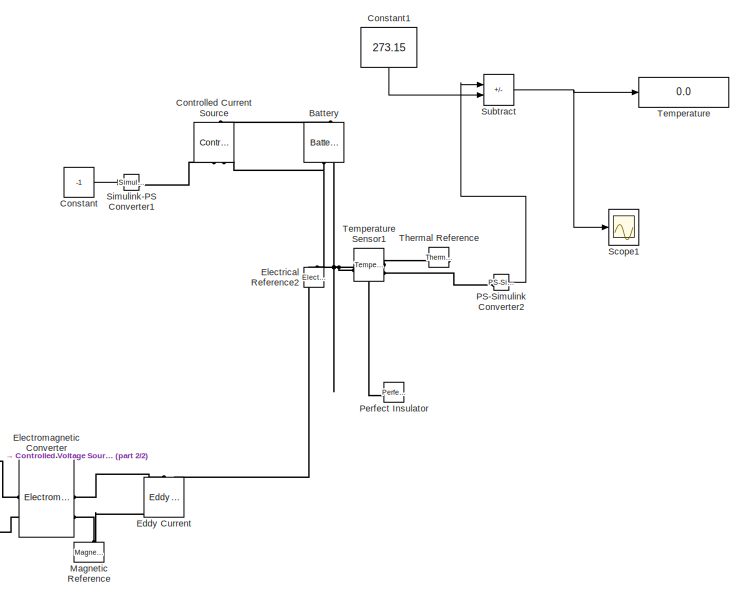
[diagram: root canvas - part 1/2, right side, full height]
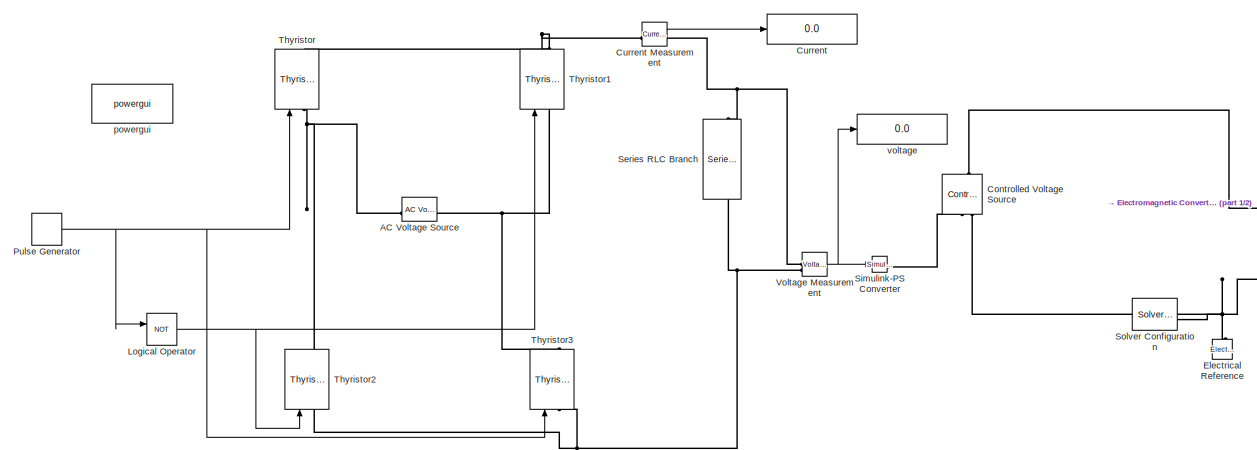
[diagram: root canvas - part 2/2, bottom left region]
MODEL slx_2c9a01e80426
KIND model
CONFIG AbsTol = auto
CONFIG EnableMultiTasking = off
CONFIG FixedStep = auto
CONFIG MaxStep = auto
CONFIG MinStep = auto
CONFIG RelTol = 1e-3
CONFIG SampleTimeConstraint = Unconstrained
CONFIG SolverName = VariableStepAuto
CONFIG StartTime = 0.0
CONFIG StopTime = 10
BLOCK [Reference] AC Voltage Source  REF=spsACVoltageSourceLib/AC Voltage Source
  LibrarySourceBlock = sps_lib/Sources/AC Voltage Source
  NameLocation = right
  SourceBlock = spsACVoltageSourceLib/AC Voltage Source
  SourceType = AC Voltage Source
BLOCK [Reference] Battery  REF=batteryecm_lib/Battery
  NameLocation = right
  SourceBlock = batteryecm_lib/Battery
  SourceType = Battery
BLOCK [Constant] Constant
  Value = -1
BLOCK [Constant] Constant1
  NameLocation = left
  Value = 273.15
BLOCK [Reference] Controlled Current Source  REF=fl_lib/Electrical/Electrical Sources/Controlled Current
Source
  NameLocation = left
  SourceBlock = fl_lib/Electrical/Electrical Sources/Controlled Current\nSource
  SourceType = Controlled Current\nSource
BLOCK [Reference] Controlled Voltage Source  REF=fl_lib/Electrical/Electrical Sources/Controlled Voltage
Source
  NameLocation = right
  SourceBlock = fl_lib/Electrical/Electrical Sources/Controlled Voltage\nSource
  SourceType = Controlled Voltage\nSource
BLOCK [Display] Current
  Decimation = 1
BLOCK [Reference] Current Measurement  REF=spsCurrentMeasurementLib/Current Measurement
  LibrarySourceBlock = sps_lib/Sensors and Measurements/Current Measurement
  SourceBlock = spsCurrentMeasurementLib/Current Measurement
  SourceType = Current Measurement
  UserDataPersistent = on
BLOCK [Reference] Eddy Current  REF=ee_lib/Passive/Eddy Current
  NameLocation = left
  SourceBlock = ee_lib/Passive/Eddy Current
  SourceType = Eddy Current
BLOCK [Reference] Electrical Reference  REF=fl_lib/Electrical/Electrical Elements/Electrical Reference
  LibrarySourceBlock = ee_lib/Connectors &\nReferences/Electrical Reference
  NameLocation = right
  SourceBlock = fl_lib/Electrical/Electrical Elements/Electrical Reference
  SourceType = Electrical Reference
BLOCK [Reference] Electrical Reference2  REF=fl_lib/Electrical/Electrical Elements/Electrical Reference
  NameLocation = right
  SourceBlock = fl_lib/Electrical/Electrical Elements/Electrical Reference
  SourceType = Electrical Reference
BLOCK [Reference] Electromagnetic Converter  REF=fl_lib/Magnetic/Magnetic Elements/Electromagnetic
Converter
  SourceBlock = fl_lib/Magnetic/Magnetic Elements/Electromagnetic\nConverter
  SourceType = Electromagnetic\nConverter
BLOCK [Logic] Logical Operator
  AllPortsSameDT = off
  Operator = NOT
  OutDataTypeStr = boolean
BLOCK [Reference] Magnetic Reference  REF=fl_lib/Magnetic/Magnetic Elements/Magnetic Reference
  NameLocation = right
  SourceBlock = fl_lib/Magnetic/Magnetic Elements/Magnetic Reference
  SourceType = Magnetic Reference
BLOCK [Reference] PS-Simulink Converter2  REF=nesl_utility/PS-Simulink
Converter
  SourceBlock = nesl_utility/PS-Simulink\nConverter
  SourceType = PS-Simulink\nConverter
BLOCK [Reference] Perfect Insulator  REF=fl_lib/Thermal/Thermal Elements/Perfect Insulator
  NameLocation = top
  SourceBlock = fl_lib/Thermal/Thermal Elements/Perfect Insulator
  SourceType = Perfect Insulator
BLOCK [DiscretePulseGenerator] Pulse Generator
  Period = 0.00002
  PulseType = Time based
  PulseWidth = 50
BLOCK [Scope] Scope1
  Floating = off
  NumInputPorts = 1
  ScopeSpecificationString = Simulink.scopes.TimeScopeBlockCfg('CurrentConfiguration', extmgr.ConfigurationSet(extmgr.Configuration('Core','General UI',true),extmgr.Configuration('Core','Source UI',true),extmgr.Configuration('Sources','WiredSimulink',true,'DataLoggingVariableName','ScopeData1'),extmgr.Configuration('Visuals','Time Domain',true,'SerializedDisplays',{struct('MinYLimReal','-695.87867','MaxYLimReal','883.17938','...<+1482ch>
BLOCK [Reference] Series RLC Branch  REF=spsSeriesRLCBranchLib/Series RLC Branch
  LibrarySourceBlock = sps_lib/Passives/Series RLC Branch
  NameLocation = left
  SourceBlock = spsSeriesRLCBranchLib/Series RLC Branch
  SourceType = Series RLC Branch
BLOCK [Reference] Simulink-PS Converter  REF=nesl_utility/Simulink-PS
Converter
  SourceBlock = nesl_utility/Simulink-PS\nConverter
  SourceType = Simulink-PS\nConverter
BLOCK [Reference] Simulink-PS Converter1  REF=nesl_utility/Simulink-PS
Converter
  SourceBlock = nesl_utility/Simulink-PS\nConverter
  SourceType = Simulink-PS\nConverter
BLOCK [Reference] Solver Configuration  REF=nesl_utility/Solver
Configuration
  NameLocation = top
  SourceBlock = nesl_utility/Solver\nConfiguration
  SourceType = Solver\nConfiguration
BLOCK [Sum] Subtract
  IconShape = rectangular
  Inputs = +-
BLOCK [Display] Temperature
  Decimation = 1
BLOCK [Reference] Temperature Sensor1  REF=fl_lib/Thermal/Thermal Sensors/Temperature Sensor
  SourceBlock = fl_lib/Thermal/Thermal Sensors/Temperature Sensor
  SourceType = Temperature Sensor
BLOCK [Reference] Thermal Reference  REF=fl_lib/Thermal/Thermal Elements/Thermal Reference
  NameLocation = top
  SourceBlock = fl_lib/Thermal/Thermal Elements/Thermal Reference
  SourceType = Thermal Reference
BLOCK [Reference] Thyristor  REF=spsThyristorLib/Thyristor
  LibrarySourceBlock = sps_lib/Power Electronics/Thyristor
  NameLocation = right
  SourceBlock = spsThyristorLib/Thyristor
  SourceType = Thyristor
BLOCK [Reference] Thyristor1  REF=spsThyristorLib/Thyristor
  LibrarySourceBlock = sps_lib/Power Electronics/Thyristor
  NameLocation = right
  SourceBlock = spsThyristorLib/Thyristor
  SourceType = Thyristor
BLOCK [Reference] Thyristor2  REF=spsThyristorLib/Thyristor
  LibrarySourceBlock = sps_lib/Power Electronics/Thyristor
  NameLocation = right
  SourceBlock = spsThyristorLib/Thyristor
  SourceType = Thyristor
BLOCK [Reference] Thyristor3  REF=spsThyristorLib/Thyristor
  LibrarySourceBlock = sps_lib/Power Electronics/Thyristor
  NameLocation = right
  SourceBlock = spsThyristorLib/Thyristor
  SourceType = Thyristor
BLOCK [Reference] Voltage Measurement  REF=spsVoltageMeasurementLib/Voltage Measurement
  LibrarySourceBlock = sps_lib/Sensors and Measurements/Voltage Measurement
  SourceBlock = spsVoltageMeasurementLib/Voltage Measurement
  SourceType = Voltage Measurement
  UserDataPersistent = on
BLOCK [Reference] powergui  REF=spspowerguiLib/powergui
  Priority = 1
  SourceBlock = spspowerguiLib/powergui
  SourceType = PSB option menu block
BLOCK [Display] voltage
  Decimation = 1
LINE Constant1:1 -> Subtract:2
LINE Constant:1 -> Simulink-PS Converter1:1
LINE Current Measurement:1 -> Current:1
NET Logical Operator:1 -> Thyristor1:1, Thyristor2:1
LINE PS-Simulink Converter2:1 -> Subtract:1
NET Pulse Generator:1 -> Logical Operator:1, Thyristor3:1, Thyristor:1
NET Subtract:1 -> Scope1:1, Temperature:1
NET Voltage Measurement:1 -> Simulink-PS Converter:1, voltage:1
PNET net1: AC Voltage Source:LConn1 -- Thyristor1:LConn1 -- Thyristor3:RConn1
PNET net2: AC Voltage Source:RConn1 -- Thyristor2:RConn1 -- Thyristor:LConn1
PLINE Battery:LConn1 -- Controlled Current Source:LConn1
PNET net3: Battery:RConn1 -- Controlled Current Source:RConn2 -- Electrical Reference2:LConn1
PNET net4: Battery:RConn2 -- Eddy Current:LConn2 -- Perfect Insulator:LConn1 -- Temperature Sensor1:LConn1
PLINE Controlled Current Source:RConn1 -- Simulink-PS Converter1:RConn1
PLINE Controlled Voltage Source:LConn1 -- Electromagnetic Converter:LConn1
PLINE Controlled Voltage Source:RConn1 -- Simulink-PS Converter:RConn1
PNET net5: Controlled Voltage Source:RConn2 -- Electrical Reference:LConn1 -- Electromagnetic Converter:LConn2 -- Solver Configuration:RConn1
PNET net6: Current Measurement:LConn1 -- Thyristor1:RConn1 -- Thyristor:RConn1
PNET net7: Current Measurement:RConn1 -- Series RLC Branch:LConn1 -- Voltage Measurement:LConn1
PLINE Eddy Current:LConn1 -- Electromagnetic Converter:RConn1
PNET net8: Eddy Current:RConn1 -- Electromagnetic Converter:RConn2 -- Magnetic Reference:LConn1
PLINE PS-Simulink Converter2:LConn1 -- Temperature Sensor1:RConn2
PNET net9: Series RLC Branch:RConn1 -- Thyristor2:LConn1 -- Thyristor3:LConn1 -- Voltage Measurement:LConn2
PLINE Temperature Sensor1:RConn1 -- Thermal Reference:LConn1
note: NET lines group one-source signal fan-out (src -> all destinations, sorted); 1:1 wires keep LINE; PNET lines group multi-terminal physical nets as a canonical sorted terminal list (undirected conserving connections); 2-terminal nets keep the pairwise PLINE form
